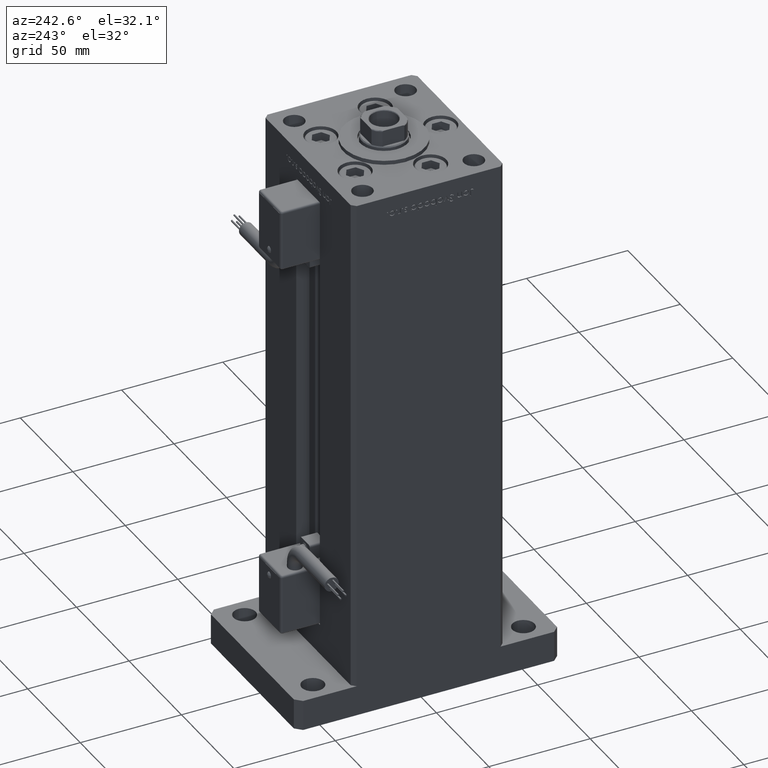
[diagram: clean part render]
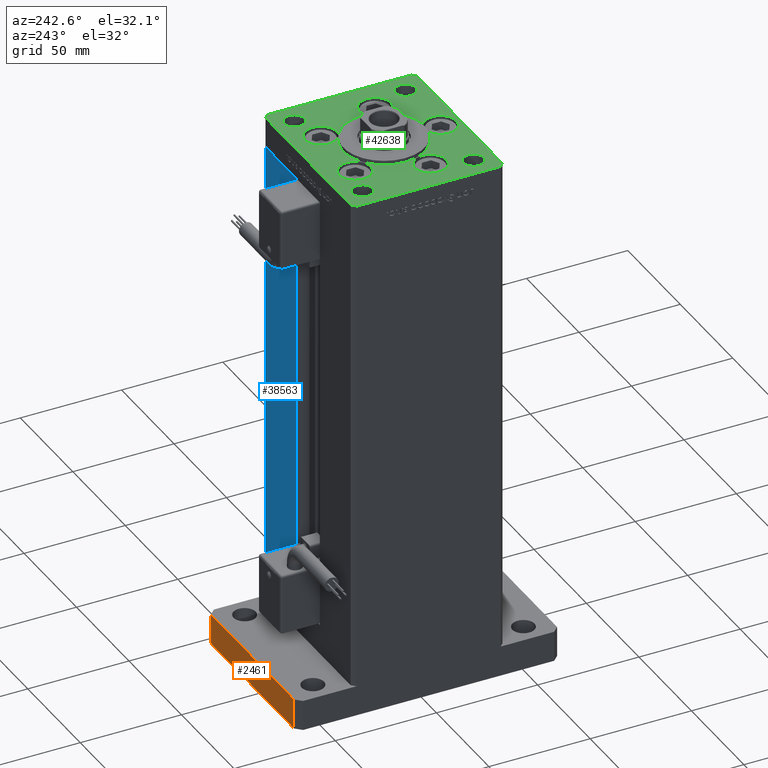
[diagram: same view with three faces highlighted in distinct colors, each labeled with its STEP entity id]
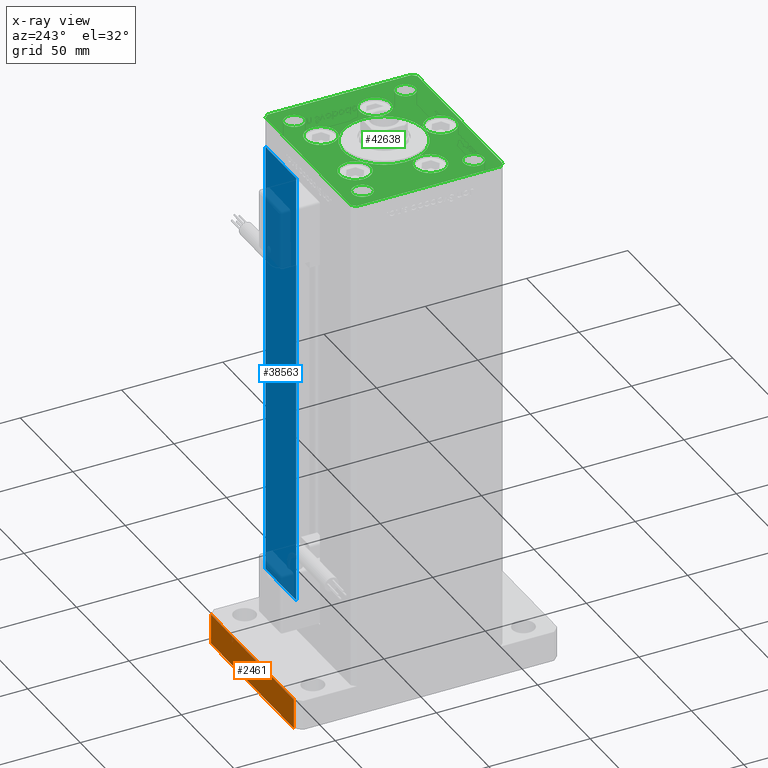
[diagram: x-ray of the same camera — body ghosted, the three highlighted faces saturated]
A machine part, auxiliary view with three faces highlighted in distinct colors.
The next image is the same camera in x-ray (body ghosted, the three faces saturated) — at least one of them is partly hidden behind the body in this view.
Their STEP definitions:

[orange] entity #2461 — the highlighted planar face has unit normal (0, -1, 0).
#3 = EDGE_CURVE ( 'NONE', #27007, #13469, #25022, .T. ) ;
#2461 = ADVANCED_FACE ( 'NONE', ( #25366 ), #17094, .F. ) ;
#3128 = CARTESIAN_POINT ( 'NONE',  ( -39.50000000000003553, 65.00000000000000000, 0.000000000000000000 ) ) ;
#5189 = EDGE_CURVE ( 'NONE', #54304, #27007, #16110, .T. ) ;
#6380 = VECTOR ( 'NONE', #6825, 1000.000000000000000 ) ;
#6825 = DIRECTION ( 'NONE',  ( -0.000000000000000000, -0.000000000000000000, -1.000000000000000000 ) ) ;
#7294 = LINE ( 'NONE', #16393, #11225 ) ;
#8348 = ORIENTED_EDGE ( 'NONE', *, *, #3, .T. ) ;
#10352 = CARTESIAN_POINT ( 'NONE',  ( 39.50000000000002842, 65.00000000000002842, 15.00000000000000000 ) ) ;
#11092 = CARTESIAN_POINT ( 'NONE',  ( -39.50000000000003553, 65.00000000000000000, 15.00000000000000000 ) ) ;
#11225 = VECTOR ( 'NONE', #29781, 1000.000000000000000 ) ;
#11434 = ORIENTED_EDGE ( 'NONE', *, *, #28409, .F. ) ;
#12502 = CARTESIAN_POINT ( 'NONE',  ( 39.50000000000002842, 65.00000000000002842, 0.000000000000000000 ) ) ;
#13469 = VERTEX_POINT ( 'NONE', #3128 ) ;
#16110 = LINE ( 'NONE', #24367, #46120 ) ;
#16393 = CARTESIAN_POINT ( 'NONE',  ( 39.50000000000002842, 65.00000000000002842, 15.00000000000000000 ) ) ;
#17094 = PLANE ( 'NONE',  #40091 ) ;
#23212 = VERTEX_POINT ( 'NONE', #35302 ) ;
#24367 = CARTESIAN_POINT ( 'NONE',  ( 39.50000000000002842, 65.00000000000002842, 15.00000000000000000 ) ) ;
#25022 = LINE ( 'NONE', #12502, #48245 ) ;
#25366 = FACE_OUTER_BOUND ( 'NONE', #34389, .T. ) ;
#26308 = ORIENTED_EDGE ( 'NONE', *, *, #5189, .T. ) ;
#27007 = VERTEX_POINT ( 'NONE', #39845 ) ;
#28409 = EDGE_CURVE ( 'NONE', #54304, #23212, #7294, .T. ) ;
#29781 = DIRECTION ( 'NONE',  ( -1.000000000000000000, -3.513364001978340512E-16, 0.000000000000000000 ) ) ;
#33467 = DIRECTION ( 'NONE',  ( -0.000000000000000000, -0.000000000000000000, -1.000000000000000000 ) ) ;
#34184 = ORIENTED_EDGE ( 'NONE', *, *, #41312, .F. ) ;
#34389 = EDGE_LOOP ( 'NONE', ( #8348, #34184, #11434, #26308 ) ) ;
#34744 = CARTESIAN_POINT ( 'NONE',  ( 39.50000000000002842, 65.00000000000002842, 15.00000000000000000 ) ) ;
#35302 = CARTESIAN_POINT ( 'NONE',  ( -39.50000000000003553, 65.00000000000000000, 15.00000000000000000 ) ) ;
#39845 = CARTESIAN_POINT ( 'NONE',  ( 39.50000000000002842, 65.00000000000002842, 0.000000000000000000 ) ) ;
#40091 = AXIS2_PLACEMENT_3D ( 'NONE', #34744, #51867, #52430 ) ;
#41312 = EDGE_CURVE ( 'NONE', #23212, #13469, #41829, .T. ) ;
#41829 = LINE ( 'NONE', #11092, #6380 ) ;
#42393 = DIRECTION ( 'NONE',  ( -1.000000000000000000, -3.513364001978340512E-16, 0.000000000000000000 ) ) ;
#46120 = VECTOR ( 'NONE', #33467, 1000.000000000000000 ) ;
#48245 = VECTOR ( 'NONE', #42393, 1000.000000000000000 ) ;
#51867 = DIRECTION ( 'NONE',  ( 3.513364001978341005E-16, -1.000000000000000000, 0.000000000000000000 ) ) ;
#52430 = DIRECTION ( 'NONE',  ( 1.000000000000000000, 3.513364001978341005E-16, 0.000000000000000000 ) ) ;
#54304 = VERTEX_POINT ( 'NONE', #10352 ) ;

[blue] entity #38563 — the highlighted planar face has unit normal (-0, -1, 0).
#1980 = CARTESIAN_POINT ( 'NONE',  ( 11.25000000000000000, 37.50000000000000000, 0.000000000000000000 ) ) ;
#3645 = LINE ( 'NONE', #37797, #44878 ) ;
#4470 = AXIS2_PLACEMENT_3D ( 'NONE', #37782, #29823, #25551 ) ;
#5058 = VERTEX_POINT ( 'NONE', #56130 ) ;
#7044 = EDGE_CURVE ( 'NONE', #8459, #5058, #36833, .T. ) ;
#8361 = EDGE_CURVE ( 'NONE', #5058, #32055, #15333, .T. ) ;
#8459 = VERTEX_POINT ( 'NONE', #1980 ) ;
#9329 = VECTOR ( 'NONE', #29402, 1000.000000000000000 ) ;
#12027 = CARTESIAN_POINT ( 'NONE',  ( 40.50000000000000000, 37.50000000000000711, 218.5000000000000000 ) ) ;
#12461 = PLANE ( 'NONE',  #4470 ) ;
#15203 = DIRECTION ( 'NONE',  ( -0.000000000000000000, -0.000000000000000000, 1.000000000000000000 ) ) ;
#15333 = LINE ( 'NONE', #37520, #32620 ) ;
#16445 = DIRECTION ( 'NONE',  ( -1.000000000000000000, 2.372271420139223331E-16, 0.000000000000000000 ) ) ;
#19625 = ORIENTED_EDGE ( 'NONE', *, *, #47507, .T. ) ;
#22581 = EDGE_LOOP ( 'NONE', ( #55916, #52810, #33149, #19625 ) ) ;
#23244 = CARTESIAN_POINT ( 'NONE',  ( 40.50000000000000000, 37.50000000000000711, 0.000000000000000000 ) ) ;
#23876 = DIRECTION ( 'NONE',  ( 1.000000000000000000, 0.000000000000000000, 0.000000000000000000 ) ) ;
#24684 = FACE_OUTER_BOUND ( 'NONE', #22581, .T. ) ;
#25551 = DIRECTION ( 'NONE',  ( 1.000000000000000000, -2.372271420139223824E-16, 0.000000000000000000 ) ) ;
#27270 = EDGE_CURVE ( 'NONE', #38755, #8459, #3645, .T. ) ;
#28036 = VECTOR ( 'NONE', #15203, 1000.000000000000000 ) ;
#28490 = CARTESIAN_POINT ( 'NONE',  ( 40.50000000000000000, 37.50000000000000711, 218.5000000000000000 ) ) ;
#29402 = DIRECTION ( 'NONE',  ( -0.000000000000000000, -0.000000000000000000, -1.000000000000000000 ) ) ;
#29823 = DIRECTION ( 'NONE',  ( -2.372271420139223824E-16, -1.000000000000000000, 0.000000000000000000 ) ) ;
#32055 = VERTEX_POINT ( 'NONE', #28490 ) ;
#32620 = VECTOR ( 'NONE', #23876, 1000.000000000000000 ) ;
#33149 = ORIENTED_EDGE ( 'NONE', *, *, #8361, .T. ) ;
#36833 = LINE ( 'NONE', #54240, #28036 ) ;
#37520 = CARTESIAN_POINT ( 'NONE',  ( -11.25000000000000000, 37.50000000000000000, 218.5000000000000000 ) ) ;
#37782 = CARTESIAN_POINT ( 'NONE',  ( -11.25000000000000000, 37.50000000000000000, 218.5000000000000000 ) ) ;
#37797 = CARTESIAN_POINT ( 'NONE',  ( -11.25000000000000000, 37.50000000000000000, 0.000000000000000000 ) ) ;
#38563 = ADVANCED_FACE ( 'NONE', ( #24684 ), #12461, .F. ) ;
#38755 = VERTEX_POINT ( 'NONE', #23244 ) ;
#44878 = VECTOR ( 'NONE', #16445, 1000.000000000000000 ) ;
#47507 = EDGE_CURVE ( 'NONE', #32055, #38755, #51056, .T. ) ;
#51056 = LINE ( 'NONE', #12027, #9329 ) ;
#52810 = ORIENTED_EDGE ( 'NONE', *, *, #7044, .T. ) ;
#54240 = CARTESIAN_POINT ( 'NONE',  ( 11.25000000000000000, 37.50000000000000000, 0.000000000000000000 ) ) ;
#55916 = ORIENTED_EDGE ( 'NONE', *, *, #27270, .T. ) ;
#56130 = CARTESIAN_POINT ( 'NONE',  ( 11.24999999999999289, 37.50000000000000000, 218.5000000000000000 ) ) ;

[green] entity #42638 — the highlighted planar face has unit normal (0, 0, 1).
#195 = CIRCLE ( 'NONE', #6525, 20.00000000000000000 ) ;
#313 = CARTESIAN_POINT ( 'NONE',  ( -42.50000000000000000, -35.50000000000004263, 0.000000000000000000 ) ) ;
#569 = DIRECTION ( 'NONE',  ( 0.000000000000000000, 0.000000000000000000, 1.000000000000000000 ) ) ;
#598 = DIRECTION ( 'NONE',  ( 0.7071067811865487940, -0.7071067811865463515, 0.000000000000000000 ) ) ;
#1210 = CARTESIAN_POINT ( 'NONE',  ( -26.39865316429777664, -9.333333333333330373, 0.000000000000000000 ) ) ;
#1331 = EDGE_CURVE ( 'NONE', #18144, #12635, #42782, .T. ) ;
#1682 = FACE_BOUND ( 'NONE', #15717, .T. ) ;
#1896 = DIRECTION ( 'NONE',  ( -0.000000000000000000, -0.000000000000000000, -1.000000000000000000 ) ) ;
#2036 = VERTEX_POINT ( 'NONE', #45965 ) ;
#2196 = VERTEX_POINT ( 'NONE', #9489 ) ;
#2349 = VERTEX_POINT ( 'NONE', #46736 ) ;
#2565 = CARTESIAN_POINT ( 'NONE',  ( -32.50000000000000000, -27.50000000000000355, 0.000000000000000000 ) ) ;
#2656 = CARTESIAN_POINT ( 'NONE',  ( -26.39865316429777664, -9.333333333333330373, 0.000000000000000000 ) ) ;
#2814 = CIRCLE ( 'NONE', #52846, 4.999999999999997335 ) ;
#3052 = CARTESIAN_POINT ( 'NONE',  ( 42.50000000000000711, -35.49999999999992895, 0.000000000000000000 ) ) ;
#3206 = EDGE_LOOP ( 'NONE', ( #7126, #28101 ) ) ;
#3399 = VERTEX_POINT ( 'NONE', #37621 ) ;
#3628 = DIRECTION ( 'NONE',  ( 1.000000000000000000, 0.000000000000000000, 0.000000000000000000 ) ) ;
#4079 = CARTESIAN_POINT ( 'NONE',  ( -32.50000000000000000, 27.50000000000000711, 0.000000000000000000 ) ) ;
#4185 = EDGE_CURVE ( 'NONE', #37082, #25702, #9845, .T. ) ;
#4350 = DIRECTION ( 'NONE',  ( -1.000000000000000000, 0.000000000000000000, 0.000000000000000000 ) ) ;
#4351 = CIRCLE ( 'NONE', #55269, 4.999999999999997335 ) ;
#4394 = CARTESIAN_POINT ( 'NONE',  ( -20.00000000000000000, -6.938893903907228378E-15, 0.000000000000000000 ) ) ;
#4655 = DIRECTION ( 'NONE',  ( -1.000000000000000000, 0.000000000000000000, 0.000000000000000000 ) ) ;
#4840 = CARTESIAN_POINT ( 'NONE',  ( 0.000000000000000000, -6.938893903907228378E-15, 0.000000000000000000 ) ) ;
#4848 = DIRECTION ( 'NONE',  ( -0.000000000000000000, -0.000000000000000000, -1.000000000000000000 ) ) ;
#4967 = DIRECTION ( 'NONE',  ( 1.000000000000000000, 1.370645709413773283E-15, 0.000000000000000000 ) ) ;
#5427 = EDGE_LOOP ( 'NONE', ( #18667, #27980 ) ) ;
#5874 = DIRECTION ( 'NONE',  ( -1.000000000000000000, -4.283267841918041508E-16, 0.000000000000000000 ) ) ;
#6143 = EDGE_CURVE ( 'NONE', #6798, #11927, #4351, .T. ) ;
#6284 = CARTESIAN_POINT ( 'NONE',  ( -32.50000000000000000, -27.50000000000000355, 0.000000000000000000 ) ) ;
#6293 = DIRECTION ( 'NONE',  ( 0.000000000000000000, 0.000000000000000000, 1.000000000000000000 ) ) ;
#6509 = DIRECTION ( 'NONE',  ( -0.000000000000000000, 0.000000000000000000, 1.000000000000000000 ) ) ;
#6525 = AXIS2_PLACEMENT_3D ( 'NONE', #36940, #40670, #32129 ) ;
#6586 = DIRECTION ( 'NONE',  ( -0.7071067811865536790, -0.7071067811865414665, 0.000000000000000000 ) ) ;
#6708 = DIRECTION ( 'NONE',  ( 1.000000000000000000, 0.000000000000000000, 0.000000000000000000 ) ) ;
#6721 = AXIS2_PLACEMENT_3D ( 'NONE', #26562, #26849, #4655 ) ;
#6779 = FACE_BOUND ( 'NONE', #37623, .T. ) ;
#6798 = VERTEX_POINT ( 'NONE', #49391 ) ;
#7126 = ORIENTED_EDGE ( 'NONE', *, *, #6143, .F. ) ;
#7332 = DIRECTION ( 'NONE',  ( -0.7071067811865524577, 0.7071067811865426878, 0.000000000000000000 ) ) ;
#7605 = LINE ( 'NONE', #3052, #13958 ) ;
#9232 = VERTEX_POINT ( 'NONE', #28171 ) ;
#9489 = CARTESIAN_POINT ( 'NONE',  ( 42.50000000000001421, 35.50000000000002132, 0.000000000000000000 ) ) ;
#9529 = CARTESIAN_POINT ( 'NONE',  ( 26.39865316429777664, -9.333333333333330373, 0.000000000000000000 ) ) ;
#9733 = ORIENTED_EDGE ( 'NONE', *, *, #21739, .F. ) ;
#9845 = LINE ( 'NONE', #18089, #34320 ) ;
#10063 = VERTEX_POINT ( 'NONE', #28774 ) ;
#10481 = CARTESIAN_POINT ( 'NONE',  ( 20.00000000000000000, -4.489600305612522259E-15, 0.000000000000000000 ) ) ;
#10826 = DIRECTION ( 'NONE',  ( 0.000000000000000000, 0.000000000000000000, 1.000000000000000000 ) ) ;
#10915 = DIRECTION ( 'NONE',  ( 1.000000000000000000, 0.000000000000000000, 0.000000000000000000 ) ) ;
#11324 = FACE_BOUND ( 'NONE', #49069, .T. ) ;
#11927 = VERTEX_POINT ( 'NONE', #47730 ) ;
#11960 = CIRCLE ( 'NONE', #21058, 5.000000000000000888 ) ;
#12085 = CIRCLE ( 'NONE', #51201, 4.999999999999997335 ) ;
#12500 = EDGE_LOOP ( 'NONE', ( #45456, #39385 ) ) ;
#12607 = DIRECTION ( 'NONE',  ( -0.000000000000000000, -0.000000000000000000, -1.000000000000000000 ) ) ;
#12635 = VERTEX_POINT ( 'NONE', #47601 ) ;
#12905 = VECTOR ( 'NONE', #18681, 1000.000000000000114 ) ;
#13064 = CARTESIAN_POINT ( 'NONE',  ( 0.000000000000000000, -28.00000000000000000, 0.000000000000000000 ) ) ;
#13411 = VERTEX_POINT ( 'NONE', #18531 ) ;
#13555 = AXIS2_PLACEMENT_3D ( 'NONE', #4840, #569, #22181 ) ;
#13958 = VECTOR ( 'NONE', #32933, 1000.000000000000000 ) ;
#14201 = EDGE_CURVE ( 'NONE', #25285, #17509, #40829, .T. ) ;
#14222 = DIRECTION ( 'NONE',  ( -1.000000000000000000, 0.000000000000000000, 0.000000000000000000 ) ) ;
#14682 = CARTESIAN_POINT ( 'NONE',  ( 7.750000000000000000, -28.00000000000000000, 0.000000000000000000 ) ) ;
#14713 = VERTEX_POINT ( 'NONE', #21150 ) ;
#14769 = AXIS2_PLACEMENT_3D ( 'NONE', #9529, #35997, #53394 ) ;
#14956 = CARTESIAN_POINT ( 'NONE',  ( -8.572913342905440715, 22.74999999999999289, 0.000000000000000000 ) ) ;
#15189 = CARTESIAN_POINT ( 'NONE',  ( -40.50000000000000000, 37.49999999999997158, 0.000000000000000000 ) ) ;
#15717 = EDGE_LOOP ( 'NONE', ( #35604, #48968 ) ) ;
#15726 = ORIENTED_EDGE ( 'NONE', *, *, #38251, .F. ) ;
#15748 = DIRECTION ( 'NONE',  ( 0.000000000000000000, 0.000000000000000000, 1.000000000000000000 ) ) ;
#15899 = ORIENTED_EDGE ( 'NONE', *, *, #39427, .T. ) ;
#15959 = CARTESIAN_POINT ( 'NONE',  ( 40.50000000000001421, -37.49999999999992184, 0.000000000000000000 ) ) ;
#16129 = CARTESIAN_POINT ( 'NONE',  ( -27.50000000000000000, -27.50000000000000355, 0.000000000000000000 ) ) ;
#16947 = EDGE_CURVE ( 'NONE', #12635, #18144, #37303, .T. ) ;
#17178 = CARTESIAN_POINT ( 'NONE',  ( 32.50000000000000000, 27.49999999999999645, 0.000000000000000000 ) ) ;
#17509 = VERTEX_POINT ( 'NONE', #4394 ) ;
#17663 = ORIENTED_EDGE ( 'NONE', *, *, #53665, .T. ) ;
#17733 = EDGE_LOOP ( 'NONE', ( #36715, #39742 ) ) ;
#17740 = VERTEX_POINT ( 'NONE', #21667 ) ;
#18089 = CARTESIAN_POINT ( 'NONE',  ( 40.50000000000000711, 37.50000000000000711, 0.000000000000000000 ) ) ;
#18144 = VERTEX_POINT ( 'NONE', #14682 ) ;
#18321 = CARTESIAN_POINT ( 'NONE',  ( 16.32291334290544071, 22.74999999999999289, 0.000000000000000000 ) ) ;
#18531 = CARTESIAN_POINT ( 'NONE',  ( 34.14865316429777664, -9.333333333333330373, 0.000000000000000000 ) ) ;
#18549 = DIRECTION ( 'NONE',  ( 0.000000000000000000, 0.000000000000000000, 1.000000000000000000 ) ) ;
#18667 = ORIENTED_EDGE ( 'NONE', *, *, #20400, .F. ) ;
#18681 = DIRECTION ( 'NONE',  ( 0.7071067811865474617, 0.7071067811865474617, 0.000000000000000000 ) ) ;
#19058 = ORIENTED_EDGE ( 'NONE', *, *, #21355, .T. ) ;
#19238 = LINE ( 'NONE', #49721, #12905 ) ;
#19343 = AXIS2_PLACEMENT_3D ( 'NONE', #24492, #45338, #19661 ) ;
#19651 = LINE ( 'NONE', #32756, #33853 ) ;
#19661 = DIRECTION ( 'NONE',  ( 1.000000000000000000, 0.000000000000000000, 0.000000000000000000 ) ) ;
#19780 = CARTESIAN_POINT ( 'NONE',  ( 32.50000000000000000, -27.50000000000000355, 0.000000000000000000 ) ) ;
#19838 = FACE_BOUND ( 'NONE', #17733, .T. ) ;
#19943 = CARTESIAN_POINT ( 'NONE',  ( 0.000000000000000000, -28.00000000000000000, 0.000000000000000000 ) ) ;
#20143 = CIRCLE ( 'NONE', #26531, 7.750000000000000000 ) ;
#20292 = EDGE_CURVE ( 'NONE', #17509, #25285, #195, .T. ) ;
#20339 = DIRECTION ( 'NONE',  ( 0.000000000000000000, 0.000000000000000000, 1.000000000000000000 ) ) ;
#20400 = EDGE_CURVE ( 'NONE', #39841, #34195, #20143, .T. ) ;
#20688 = CARTESIAN_POINT ( 'NONE',  ( -16.32291334290544071, 22.74999999999999289, 0.000000000000000000 ) ) ;
#20691 = CARTESIAN_POINT ( 'NONE',  ( 42.50000000000001421, 35.50000000000002132, 0.000000000000000000 ) ) ;
#20952 = ORIENTED_EDGE ( 'NONE', *, *, #36656, .T. ) ;
#21030 = DIRECTION ( 'NONE',  ( 0.000000000000000000, 0.000000000000000000, 1.000000000000000000 ) ) ;
#21058 = AXIS2_PLACEMENT_3D ( 'NONE', #6284, #10826, #31923 ) ;
#21123 = EDGE_CURVE ( 'NONE', #35166, #2036, #42063, .T. ) ;
#21150 = CARTESIAN_POINT ( 'NONE',  ( 27.50000000000000355, -27.50000000000000355, 0.000000000000000000 ) ) ;
#21312 = DIRECTION ( 'NONE',  ( 1.000000000000000000, 0.000000000000000000, 0.000000000000000000 ) ) ;
#21355 = EDGE_CURVE ( 'NONE', #34823, #9232, #19238, .T. ) ;
#21447 = ORIENTED_EDGE ( 'NONE', *, *, #46114, .F. ) ;
#21622 = ORIENTED_EDGE ( 'NONE', *, *, #26840, .T. ) ;
#21667 = CARTESIAN_POINT ( 'NONE',  ( 18.64865316429777664, -9.333333333333328596, 0.000000000000000000 ) ) ;
#21739 = EDGE_CURVE ( 'NONE', #55165, #43074, #47496, .T. ) ;
#21805 = AXIS2_PLACEMENT_3D ( 'NONE', #19780, #1896, #42005 ) ;
#22181 = DIRECTION ( 'NONE',  ( 1.000000000000000000, 0.000000000000000000, 0.000000000000000000 ) ) ;
#22728 = VERTEX_POINT ( 'NONE', #37944 ) ;
#23266 = CARTESIAN_POINT ( 'NONE',  ( 8.572913342905442491, 22.74999999999999289, 0.000000000000000000 ) ) ;
#23386 = DIRECTION ( 'NONE',  ( 1.000000000000000000, 0.000000000000000000, 0.000000000000000000 ) ) ;
#23555 = CIRCLE ( 'NONE', #38080, 7.750000000000000000 ) ;
#23690 = DIRECTION ( 'NONE',  ( 0.000000000000000000, 0.000000000000000000, 1.000000000000000000 ) ) ;
#24009 = CARTESIAN_POINT ( 'NONE',  ( -16.32291334290544071, 22.74999999999999289, 0.000000000000000000 ) ) ;
#24134 = CARTESIAN_POINT ( 'NONE',  ( 0.000000000000000000, 0.000000000000000000, 0.000000000000000000 ) ) ;
#24492 = CARTESIAN_POINT ( 'NONE',  ( 16.32291334290544071, 22.74999999999999289, 0.000000000000000000 ) ) ;
#24978 = LINE ( 'NONE', #20691, #40268 ) ;
#25285 = VERTEX_POINT ( 'NONE', #10481 ) ;
#25702 = VERTEX_POINT ( 'NONE', #15189 ) ;
#26050 = CARTESIAN_POINT ( 'NONE',  ( -24.07291334290544071, 22.74999999999999289, 0.000000000000000000 ) ) ;
#26299 = DIRECTION ( 'NONE',  ( 0.000000000000000000, 0.000000000000000000, 1.000000000000000000 ) ) ;
#26384 = EDGE_CURVE ( 'NONE', #17740, #13411, #53900, .T. ) ;
#26401 = ORIENTED_EDGE ( 'NONE', *, *, #31859, .T. ) ;
#26531 = AXIS2_PLACEMENT_3D ( 'NONE', #20688, #38057, #3628 ) ;
#26562 = CARTESIAN_POINT ( 'NONE',  ( -32.50000000000000000, 27.50000000000000711, 0.000000000000000000 ) ) ;
#26840 = EDGE_CURVE ( 'NONE', #25702, #35166, #19651, .T. ) ;
#26849 = DIRECTION ( 'NONE',  ( -0.000000000000000000, -0.000000000000000000, -1.000000000000000000 ) ) ;
#27148 = LINE ( 'NONE', #44826, #43071 ) ;
#27596 = CARTESIAN_POINT ( 'NONE',  ( 32.50000000000000000, -27.50000000000000355, 0.000000000000000000 ) ) ;
#27735 = EDGE_CURVE ( 'NONE', #36028, #22728, #50288, .T. ) ;
#27980 = ORIENTED_EDGE ( 'NONE', *, *, #38976, .F. ) ;
#28096 = EDGE_CURVE ( 'NONE', #11927, #6798, #12085, .T. ) ;
#28101 = ORIENTED_EDGE ( 'NONE', *, *, #28096, .F. ) ;
#28171 = CARTESIAN_POINT ( 'NONE',  ( 42.50000000000000711, -35.49999999999992895, 0.000000000000000000 ) ) ;
#28267 = CARTESIAN_POINT ( 'NONE',  ( 40.50000000000000711, 37.50000000000000711, 0.000000000000000000 ) ) ;
#28272 = DIRECTION ( 'NONE',  ( 1.000000000000000000, 0.000000000000000000, 0.000000000000000000 ) ) ;
#28774 = CARTESIAN_POINT ( 'NONE',  ( 37.50000000000000000, -27.50000000000000355, 0.000000000000000000 ) ) ;
#29229 = DIRECTION ( 'NONE',  ( 1.000000000000000000, 0.000000000000000000, 0.000000000000000000 ) ) ;
#29945 = AXIS2_PLACEMENT_3D ( 'NONE', #24009, #49927, #10915 ) ;
#30632 = ORIENTED_EDGE ( 'NONE', *, *, #1331, .F. ) ;
#30964 = EDGE_LOOP ( 'NONE', ( #30632, #46940 ) ) ;
#31859 = EDGE_CURVE ( 'NONE', #2349, #3399, #55017, .T. ) ;
#31923 = DIRECTION ( 'NONE',  ( 1.000000000000000000, 0.000000000000000000, 0.000000000000000000 ) ) ;
#32129 = DIRECTION ( 'NONE',  ( 1.000000000000000000, 0.000000000000000000, 0.000000000000000000 ) ) ;
#32734 = CIRCLE ( 'NONE', #40912, 5.000000000000000888 ) ;
#32756 = CARTESIAN_POINT ( 'NONE',  ( -40.50000000000000000, 37.49999999999997158, 0.000000000000000000 ) ) ;
#32766 = AXIS2_PLACEMENT_3D ( 'NONE', #13064, #21030, #21312 ) ;
#32933 = DIRECTION ( 'NONE',  ( 9.773090005503145261E-17, 1.000000000000000000, 0.000000000000000000 ) ) ;
#33160 = CARTESIAN_POINT ( 'NONE',  ( 26.39865316429777664, -9.333333333333330373, 0.000000000000000000 ) ) ;
#33853 = VECTOR ( 'NONE', #6586, 1000.000000000000000 ) ;
#34195 = VERTEX_POINT ( 'NONE', #26050 ) ;
#34320 = VECTOR ( 'NONE', #5874, 1000.000000000000000 ) ;
#34823 = VERTEX_POINT ( 'NONE', #15959 ) ;
#35031 = ORIENTED_EDGE ( 'NONE', *, *, #53996, .T. ) ;
#35166 = VERTEX_POINT ( 'NONE', #42572 ) ;
#35385 = CIRCLE ( 'NONE', #29945, 7.750000000000000000 ) ;
#35412 = VERTEX_POINT ( 'NONE', #46793 ) ;
#35548 = ORIENTED_EDGE ( 'NONE', *, *, #4185, .T. ) ;
#35604 = ORIENTED_EDGE ( 'NONE', *, *, #55141, .F. ) ;
#35997 = DIRECTION ( 'NONE',  ( 0.000000000000000000, 0.000000000000000000, 1.000000000000000000 ) ) ;
#36028 = VERTEX_POINT ( 'NONE', #23266 ) ;
#36402 = FACE_BOUND ( 'NONE', #39035, .T. ) ;
#36543 = ORIENTED_EDGE ( 'NONE', *, *, #43540, .T. ) ;
#36656 = EDGE_CURVE ( 'NONE', #10063, #14713, #45448, .T. ) ;
#36704 = AXIS2_PLACEMENT_3D ( 'NONE', #18321, #54221, #28272 ) ;
#36715 = ORIENTED_EDGE ( 'NONE', *, *, #55978, .F. ) ;
#36794 = AXIS2_PLACEMENT_3D ( 'NONE', #4079, #12607, #4350 ) ;
#36940 = CARTESIAN_POINT ( 'NONE',  ( 0.000000000000000000, -6.938893903907228378E-15, 0.000000000000000000 ) ) ;
#37082 = VERTEX_POINT ( 'NONE', #28267 ) ;
#37303 = CIRCLE ( 'NONE', #32766, 7.750000000000000000 ) ;
#37319 = DIRECTION ( 'NONE',  ( 1.000000000000000000, 0.000000000000000000, 0.000000000000000000 ) ) ;
#37430 = VECTOR ( 'NONE', #38925, 1000.000000000000000 ) ;
#37621 = CARTESIAN_POINT ( 'NONE',  ( -27.50000000000000000, 27.50000000000000711, 0.000000000000000000 ) ) ;
#37623 = EDGE_LOOP ( 'NONE', ( #35031, #26401 ) ) ;
#37944 = CARTESIAN_POINT ( 'NONE',  ( 24.07291334290544071, 22.74999999999999289, 0.000000000000000000 ) ) ;
#38057 = DIRECTION ( 'NONE',  ( 0.000000000000000000, 0.000000000000000000, 1.000000000000000000 ) ) ;
#38080 = AXIS2_PLACEMENT_3D ( 'NONE', #1210, #18549, #23386 ) ;
#38251 = EDGE_CURVE ( 'NONE', #45746, #35412, #32734, .T. ) ;
#38373 = CARTESIAN_POINT ( 'NONE',  ( 32.50000000000000000, 27.49999999999999645, 0.000000000000000000 ) ) ;
#38588 = CIRCLE ( 'NONE', #39479, 7.750000000000000000 ) ;
#38925 = DIRECTION ( 'NONE',  ( 9.773090005503134168E-17, -1.000000000000000000, 0.000000000000000000 ) ) ;
#38941 = DIRECTION ( 'NONE',  ( 0.000000000000000000, 0.000000000000000000, 1.000000000000000000 ) ) ;
#38976 = EDGE_CURVE ( 'NONE', #34195, #39841, #35385, .T. ) ;
#39035 = EDGE_LOOP ( 'NONE', ( #20952, #36543 ) ) ;
#39225 = EDGE_CURVE ( 'NONE', #43074, #55165, #23555, .T. ) ;
#39385 = ORIENTED_EDGE ( 'NONE', *, *, #14201, .F. ) ;
#39427 = EDGE_CURVE ( 'NONE', #2036, #49270, #43580, .T. ) ;
#39479 = AXIS2_PLACEMENT_3D ( 'NONE', #33160, #20339, #6708 ) ;
#39742 = ORIENTED_EDGE ( 'NONE', *, *, #26384, .F. ) ;
#39841 = VERTEX_POINT ( 'NONE', #14956 ) ;
#40268 = VECTOR ( 'NONE', #7332, 1000.000000000000000 ) ;
#40670 = DIRECTION ( 'NONE',  ( 0.000000000000000000, 0.000000000000000000, 1.000000000000000000 ) ) ;
#40675 = FACE_BOUND ( 'NONE', #3206, .T. ) ;
#40829 = CIRCLE ( 'NONE', #13555, 20.00000000000000000 ) ;
#40912 = AXIS2_PLACEMENT_3D ( 'NONE', #2565, #6293, #41021 ) ;
#41021 = DIRECTION ( 'NONE',  ( 1.000000000000000000, 0.000000000000000000, 0.000000000000000000 ) ) ;
#41497 = FACE_BOUND ( 'NONE', #5427, .T. ) ;
#42005 = DIRECTION ( 'NONE',  ( -1.000000000000000000, 0.000000000000000000, 0.000000000000000000 ) ) ;
#42063 = LINE ( 'NONE', #50622, #37430 ) ;
#42572 = CARTESIAN_POINT ( 'NONE',  ( -42.50000000000000711, 35.50000000000000000, 0.000000000000000000 ) ) ;
#42638 = ADVANCED_FACE ( 'NONE', ( #45801, #41497, #1682, #19838, #54352, #54908, #6779, #40675, #11324, #45527, #36402 ), #44977, .T. ) ;
#42782 = CIRCLE ( 'NONE', #54619, 7.750000000000000000 ) ;
#42830 = AXIS2_PLACEMENT_3D ( 'NONE', #24134, #6509, #50342 ) ;
#43071 = VECTOR ( 'NONE', #4967, 1000.000000000000000 ) ;
#43074 = VERTEX_POINT ( 'NONE', #55910 ) ;
#43380 = ORIENTED_EDGE ( 'NONE', *, *, #47737, .T. ) ;
#43540 = EDGE_CURVE ( 'NONE', #14713, #10063, #2814, .T. ) ;
#43580 = LINE ( 'NONE', #313, #54509 ) ;
#43915 = CARTESIAN_POINT ( 'NONE',  ( -40.50000000000000711, -37.50000000000003553, 0.000000000000000000 ) ) ;
#44011 = CIRCLE ( 'NONE', #6721, 5.000000000000004441 ) ;
#44678 = EDGE_LOOP ( 'NONE', ( #9733, #49742 ) ) ;
#44826 = CARTESIAN_POINT ( 'NONE',  ( -40.50000000000000711, -37.50000000000003553, 0.000000000000000000 ) ) ;
#44977 = PLANE ( 'NONE',  #42830 ) ;
#45338 = DIRECTION ( 'NONE',  ( 0.000000000000000000, 0.000000000000000000, 1.000000000000000000 ) ) ;
#45448 = CIRCLE ( 'NONE', #21805, 4.999999999999997335 ) ;
#45456 = ORIENTED_EDGE ( 'NONE', *, *, #20292, .F. ) ;
#45527 = FACE_OUTER_BOUND ( 'NONE', #49601, .T. ) ;
#45677 = AXIS2_PLACEMENT_3D ( 'NONE', #2656, #15748, #50495 ) ;
#45746 = VERTEX_POINT ( 'NONE', #16129 ) ;
#45801 = FACE_BOUND ( 'NONE', #12500, .T. ) ;
#45965 = CARTESIAN_POINT ( 'NONE',  ( -42.50000000000000000, -35.50000000000004263, 0.000000000000000000 ) ) ;
#46114 = EDGE_CURVE ( 'NONE', #35412, #45746, #11960, .T. ) ;
#46736 = CARTESIAN_POINT ( 'NONE',  ( -37.50000000000000711, 27.50000000000000711, 0.000000000000000000 ) ) ;
#46793 = CARTESIAN_POINT ( 'NONE',  ( -37.50000000000000711, -27.50000000000000355, 0.000000000000000000 ) ) ;
#46940 = ORIENTED_EDGE ( 'NONE', *, *, #16947, .F. ) ;
#47496 = CIRCLE ( 'NONE', #45677, 7.750000000000000000 ) ;
#47601 = CARTESIAN_POINT ( 'NONE',  ( -7.750000000000000000, -28.00000000000000000, 0.000000000000000000 ) ) ;
#47730 = CARTESIAN_POINT ( 'NONE',  ( 27.50000000000000355, 27.49999999999999645, 0.000000000000000000 ) ) ;
#47737 = EDGE_CURVE ( 'NONE', #2196, #37082, #24978, .T. ) ;
#48059 = ORIENTED_EDGE ( 'NONE', *, *, #53276, .T. ) ;
#48968 = ORIENTED_EDGE ( 'NONE', *, *, #27735, .F. ) ;
#49011 = ORIENTED_EDGE ( 'NONE', *, *, #21123, .T. ) ;
#49069 = EDGE_LOOP ( 'NONE', ( #15726, #21447 ) ) ;
#49270 = VERTEX_POINT ( 'NONE', #43915 ) ;
#49391 = CARTESIAN_POINT ( 'NONE',  ( 37.50000000000000000, 27.49999999999999645, 0.000000000000000000 ) ) ;
#49601 = EDGE_LOOP ( 'NONE', ( #15899, #48059, #19058, #17663, #43380, #35548, #21622, #49011 ) ) ;
#49721 = CARTESIAN_POINT ( 'NONE',  ( 40.50000000000001421, -37.49999999999992184, 0.000000000000000000 ) ) ;
#49742 = ORIENTED_EDGE ( 'NONE', *, *, #39225, .F. ) ;
#49927 = DIRECTION ( 'NONE',  ( 0.000000000000000000, 0.000000000000000000, 1.000000000000000000 ) ) ;
#50194 = CARTESIAN_POINT ( 'NONE',  ( -18.64865316429777664, -9.333333333333330373, 0.000000000000000000 ) ) ;
#50288 = CIRCLE ( 'NONE', #19343, 7.750000000000000000 ) ;
#50342 = DIRECTION ( 'NONE',  ( 1.000000000000000000, 0.000000000000000000, 0.000000000000000000 ) ) ;
#50495 = DIRECTION ( 'NONE',  ( 1.000000000000000000, 0.000000000000000000, 0.000000000000000000 ) ) ;
#50622 = CARTESIAN_POINT ( 'NONE',  ( -42.50000000000000711, 35.50000000000000000, 0.000000000000000000 ) ) ;
#50932 = DIRECTION ( 'NONE',  ( 1.000000000000000000, 0.000000000000000000, 0.000000000000000000 ) ) ;
#51201 = AXIS2_PLACEMENT_3D ( 'NONE', #38373, #38941, #50932 ) ;
#52846 = AXIS2_PLACEMENT_3D ( 'NONE', #27596, #4848, #14222 ) ;
#53276 = EDGE_CURVE ( 'NONE', #49270, #34823, #27148, .T. ) ;
#53394 = DIRECTION ( 'NONE',  ( 1.000000000000000000, 0.000000000000000000, 0.000000000000000000 ) ) ;
#53665 = EDGE_CURVE ( 'NONE', #9232, #2196, #7605, .T. ) ;
#53900 = CIRCLE ( 'NONE', #14769, 7.750000000000000000 ) ;
#53996 = EDGE_CURVE ( 'NONE', #3399, #2349, #44011, .T. ) ;
#54018 = CIRCLE ( 'NONE', #36704, 7.750000000000000000 ) ;
#54221 = DIRECTION ( 'NONE',  ( 0.000000000000000000, 0.000000000000000000, 1.000000000000000000 ) ) ;
#54352 = FACE_BOUND ( 'NONE', #30964, .T. ) ;
#54509 = VECTOR ( 'NONE', #598, 1000.000000000000000 ) ;
#54619 = AXIS2_PLACEMENT_3D ( 'NONE', #19943, #23690, #37319 ) ;
#54908 = FACE_BOUND ( 'NONE', #44678, .T. ) ;
#55017 = CIRCLE ( 'NONE', #36794, 5.000000000000004441 ) ;
#55141 = EDGE_CURVE ( 'NONE', #22728, #36028, #54018, .T. ) ;
#55165 = VERTEX_POINT ( 'NONE', #50194 ) ;
#55269 = AXIS2_PLACEMENT_3D ( 'NONE', #17178, #26299, #29229 ) ;
#55910 = CARTESIAN_POINT ( 'NONE',  ( -34.14865316429777664, -9.333333333333328596, 0.000000000000000000 ) ) ;
#55978 = EDGE_CURVE ( 'NONE', #13411, #17740, #38588, .T. ) ;